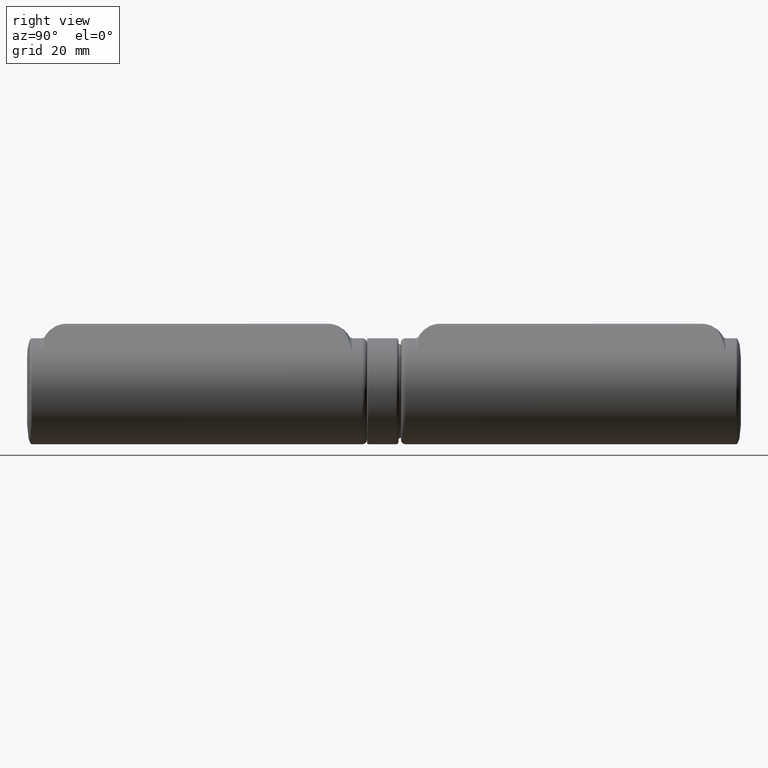
[diagram: clean part render]
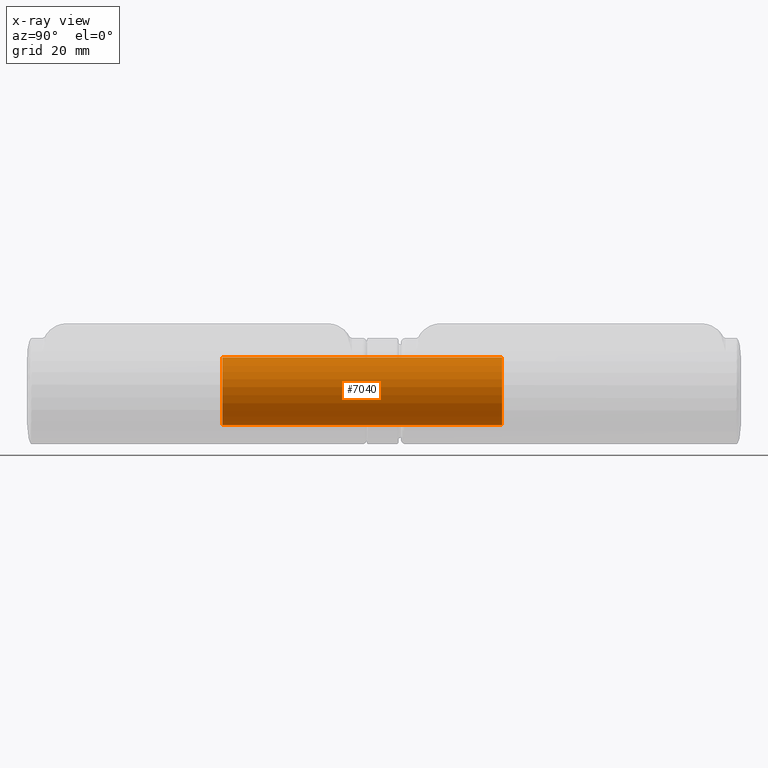
[diagram: x-ray — body ghosted, one internal face saturated and labeled with its STEP entity id]
A machine part, right view, then the same camera in x-ray: the body is ghosted and one INTERNAL B-rep face — a face not visible from any outside direction — is saturated and labeled: STEP entity #7040.
In plain terms, the highlighted cylindrical surface (bore or boss wall) has radius 7 mm, axis along (-0, -1, -0).
Its self-contained STEP definition (entity closure, byte-faithful):
#984 = VERTEX_POINT ( 'NONE', #8965 ) ;
#1069 = ORIENTED_EDGE ( 'NONE', *, *, #10480, .T. ) ;
#1777 = CARTESIAN_POINT ( 'NONE',  ( 0.000000000000000000, 65.25000000000000000, 0.000000000000000000 ) ) ;
#1782 = CIRCLE ( 'NONE', #2604, 7.000000000000000000 ) ;
#2082 = AXIS2_PLACEMENT_3D ( 'NONE', #1777, #6971, #7305 ) ;
#2407 = DIRECTION ( 'NONE',  ( 0.000000000000000000, 0.000000000000000000, 1.000000000000000000 ) ) ;
#2604 = AXIS2_PLACEMENT_3D ( 'NONE', #4877, #9251, #2407 ) ;
#2663 = EDGE_LOOP ( 'NONE', ( #1069 ) ) ;
#4397 = DIRECTION ( 'NONE',  ( 0.000000000000000000, 0.000000000000000000, 1.000000000000000000 ) ) ;
#4752 = AXIS2_PLACEMENT_3D ( 'NONE', #6267, #8689, #4397 ) ;
#4877 = CARTESIAN_POINT ( 'NONE',  ( 0.000000000000000000, 63.25000000000000000, 0.000000000000000000 ) ) ;
#5426 = VERTEX_POINT ( 'NONE', #9609 ) ;
#5829 = CYLINDRICAL_SURFACE ( 'NONE', #2082, 7.000000000000000000 ) ;
#6267 = CARTESIAN_POINT ( 'NONE',  ( 0.000000000000000000, 5.249999999999997335, 0.000000000000000000 ) ) ;
#6908 = ORIENTED_EDGE ( 'NONE', *, *, #9895, .T. ) ;
#6971 = DIRECTION ( 'NONE',  ( -0.000000000000000000, -1.000000000000000000, -0.000000000000000000 ) ) ;
#7040 = ADVANCED_FACE ( 'NONE', ( #9013, #9810 ), #5829, .T. ) ;
#7305 = DIRECTION ( 'NONE',  ( 0.000000000000000000, 0.000000000000000000, -1.000000000000000000 ) ) ;
#7859 = EDGE_LOOP ( 'NONE', ( #6908 ) ) ;
#8689 = DIRECTION ( 'NONE',  ( 0.000000000000000000, 1.000000000000000000, 0.000000000000000000 ) ) ;
#8965 = CARTESIAN_POINT ( 'NONE',  ( 0.000000000000000000, 63.25000000000000000, 7.000000000000000000 ) ) ;
#9013 = FACE_OUTER_BOUND ( 'NONE', #2663, .T. ) ;
#9251 = DIRECTION ( 'NONE',  ( -0.000000000000000000, -1.000000000000000000, -0.000000000000000000 ) ) ;
#9609 = CARTESIAN_POINT ( 'NONE',  ( 0.000000000000000000, 5.249999999999997335, 7.000000000000000000 ) ) ;
#9810 = FACE_OUTER_BOUND ( 'NONE', #7859, .T. ) ;
#9866 = CIRCLE ( 'NONE', #4752, 7.000000000000000000 ) ;
#9895 = EDGE_CURVE ( 'NONE', #5426, #5426, #9866, .T. ) ;
#10480 = EDGE_CURVE ( 'NONE', #984, #984, #1782, .T. ) ;